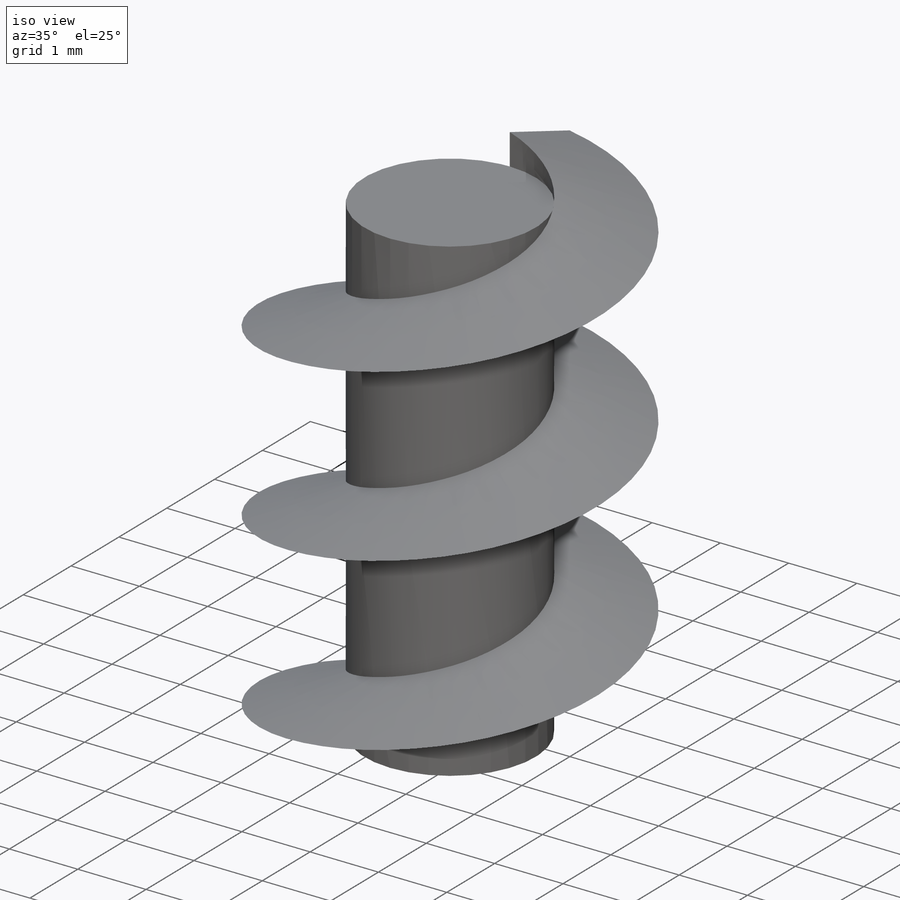
[diagram: iso view]
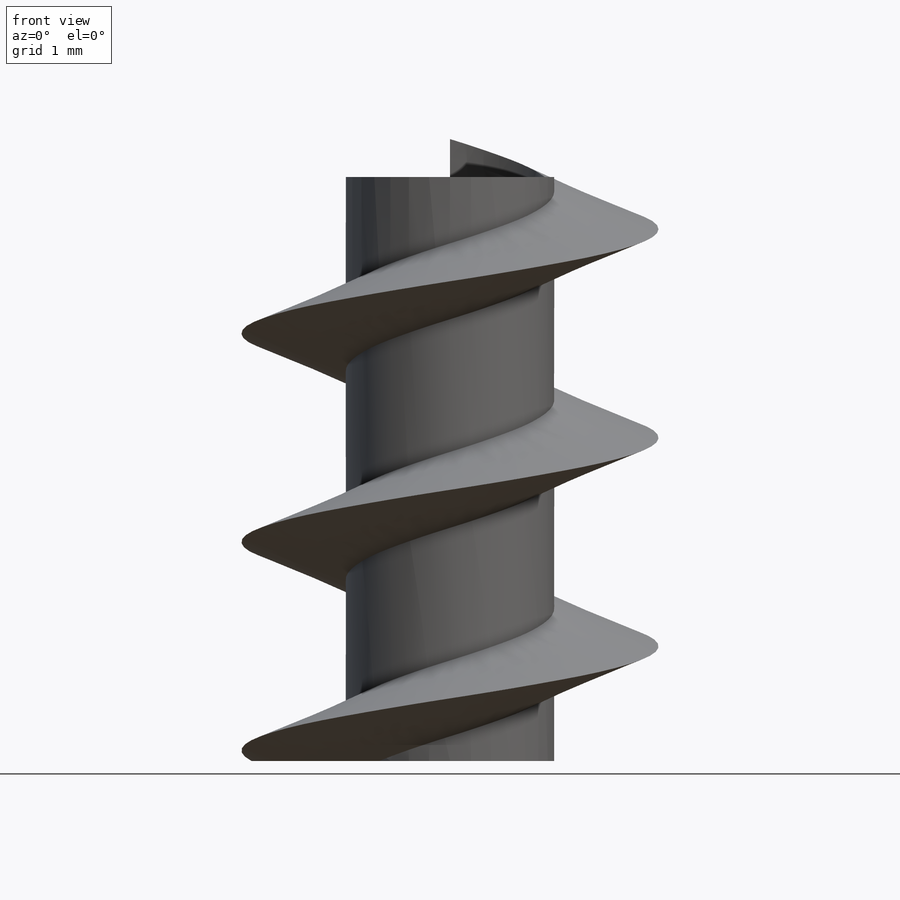
[diagram: front view]
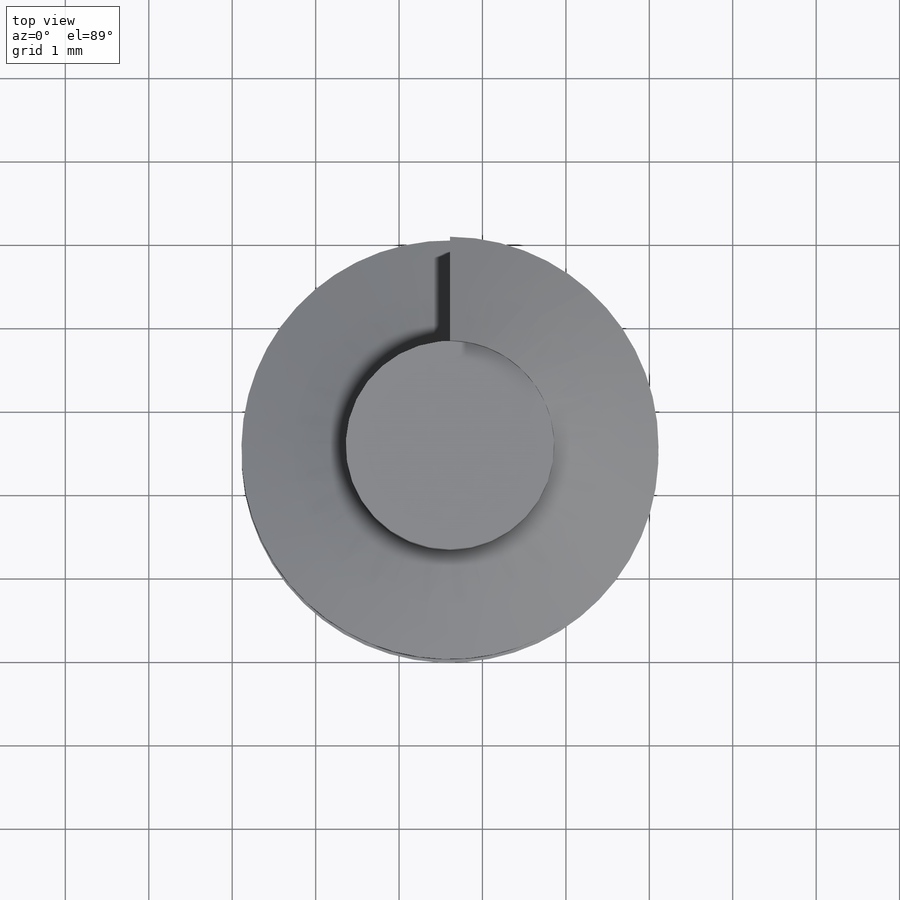
[diagram: top view]
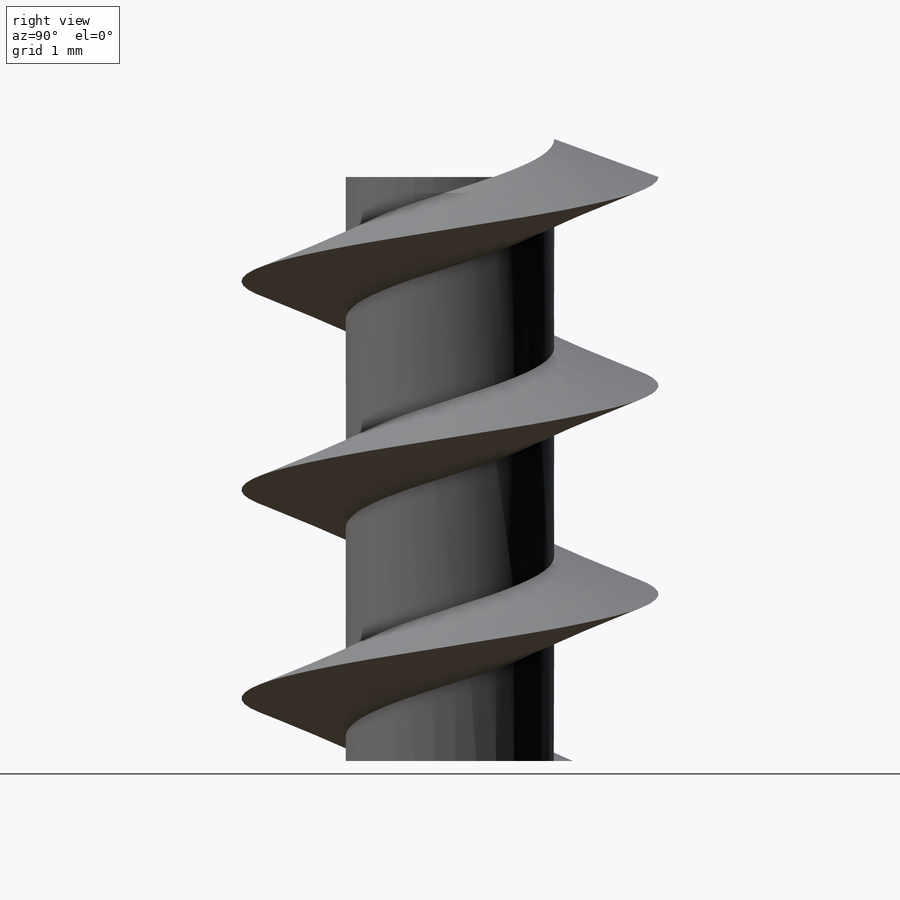
[diagram: right view]
SOLIDWORKS PART (.sldprt)
format: sldprt  version: not decoded by parser v0  size: 230,400 bytes
history: native  units: mm
features: plane x4, sketch x4, material x1, extrude x1, helix x1, sweep x1, cut_extrude x1 (+12 scaffold rows collapsed)
feature tree (25):
  scaffold x12  (default folders/planes/origin — collapsed)
  material  "Matériau <non spécifié>"
  plane  "Face"
  plane  "Dessus"
  plane  "Droite"
  sketch  "Esquisse2"  dims[D1=2.5mm]
  extrude  "Extrusion1"  Depth=10mm
  sketch  "Esquisse3"  dims[D1=5.0mm]
  helix  "Hélice/Spirale1"  Pitch=10mm
  plane  "Plan1"
  sketch  "Esquisse4"  dims[c1.D1=~1.408474mm c2.D1=40.0deg c2.D2=~1.471842mm c3.D2=20.0deg]
  sweep  "Balayage1"
  sketch  "Esquisse5"
  cut_extrude  "Extrusion2"  Depth=3mm
decode coverage: 6 of 8 modeling features carry decoded parameters
note: ~ marks probable driven/reference dimensions
note: suppression state not decoded; provenance and decode notes live in map.json
